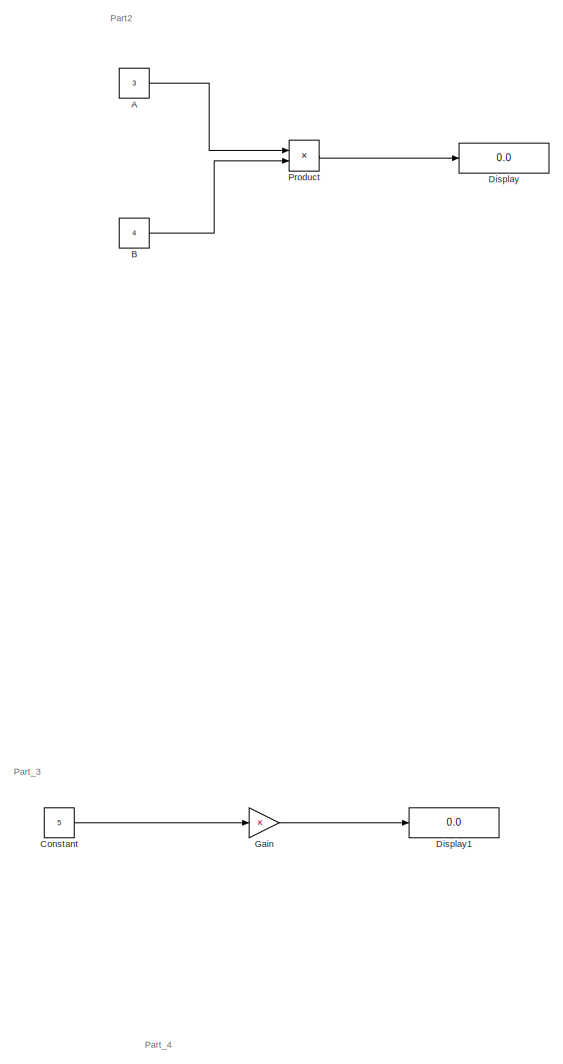
[diagram: root canvas - part 1/2, full width, top band]
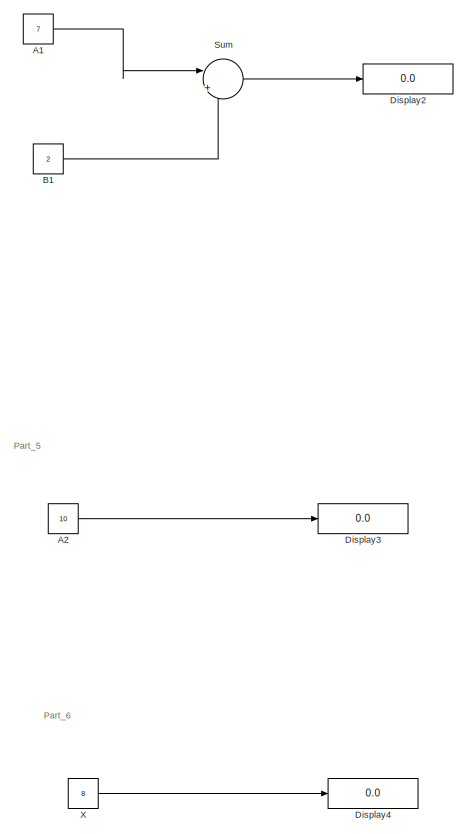
[diagram: root canvas - part 2/2, full width, bottom band]
MODEL slx_6ce48e23e554
KIND model
CONFIG AbsTol = auto
CONFIG EnableMultiTasking = off
CONFIG FixedStep = auto
CONFIG MaxStep = auto
CONFIG MinStep = auto
CONFIG RelTol = 1e-3
CONFIG SampleTimeConstraint = Unconstrained
CONFIG SolverName = VariableStepAuto
CONFIG StartTime = 0.0
CONFIG StopTime = 10.0
BLOCK [Constant] A
  Value = 3
BLOCK [Constant] A1
  Value = 7
BLOCK [Constant] A2
  Value = 10
BLOCK [Constant] B
  Value = 4
BLOCK [Constant] B1
  Value = 2
BLOCK [Constant] Constant
  Value = 5
BLOCK [Display] Display
  Decimation = 1
  Ports = [1]
BLOCK [Display] Display1
  Decimation = 1
  Ports = [1]
BLOCK [Display] Display2
  Decimation = 1
  Ports = [1]
BLOCK [Display] Display3
  Decimation = 1
  Ports = [1]
BLOCK [Display] Display4
  Decimation = 1
  Ports = [1]
BLOCK [Gain] Gain
BLOCK [Product] Product
  Ports = [2, 1]
BLOCK [Sum] Sum
  Inputs = |++
  Ports = [2, 1]
BLOCK [Constant] X
  Value = 8
ANNOTATION (root): Part_3
ANNOTATION (root): Part2
ANNOTATION (root): Part_4
ANNOTATION (root): Part_5
ANNOTATION (root): Part_6
LINE A1:1 -> Sum:1
LINE A2:1 -> Display3:1
LINE A:1 -> Product:1
LINE B1:1 -> Sum:2
LINE B:1 -> Product:2
LINE Constant:1 -> Gain:1
LINE Gain:1 -> Display1:1
LINE Product:1 -> Display:1
LINE Sum:1 -> Display2:1
LINE X:1 -> Display4:1
